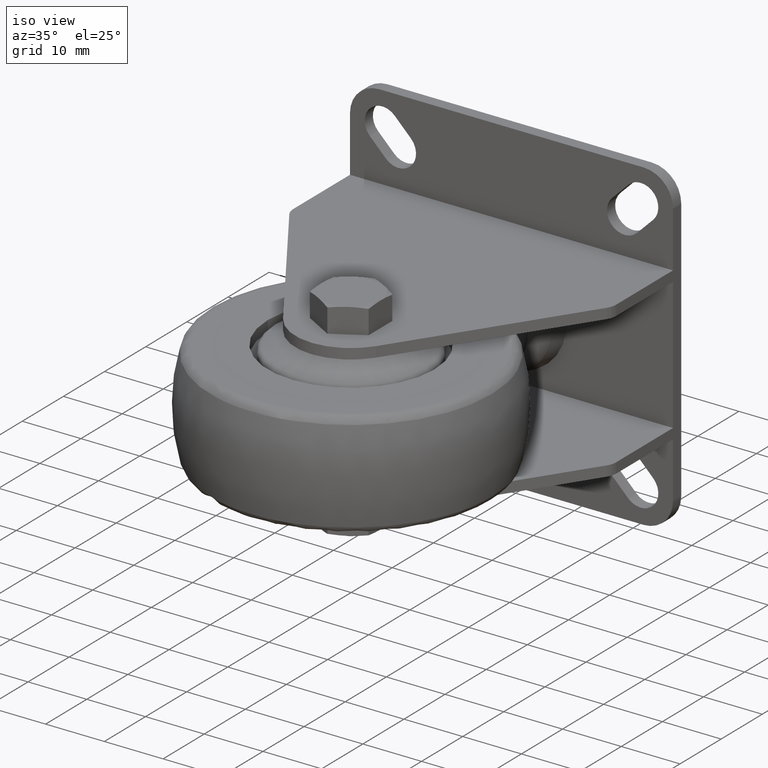
[diagram: clean part render]
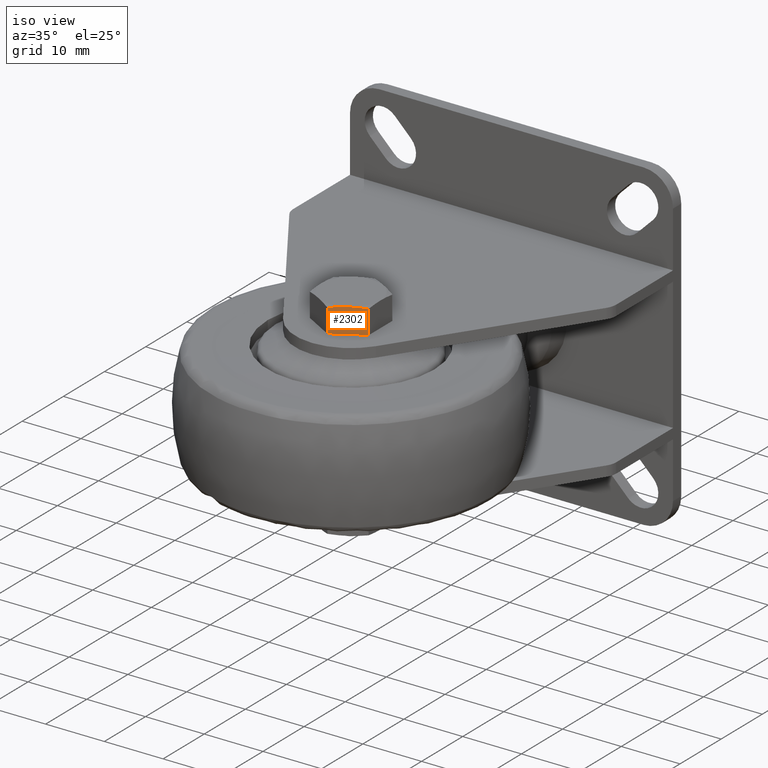
[diagram: same view with one face highlighted and labeled with its STEP entity id]
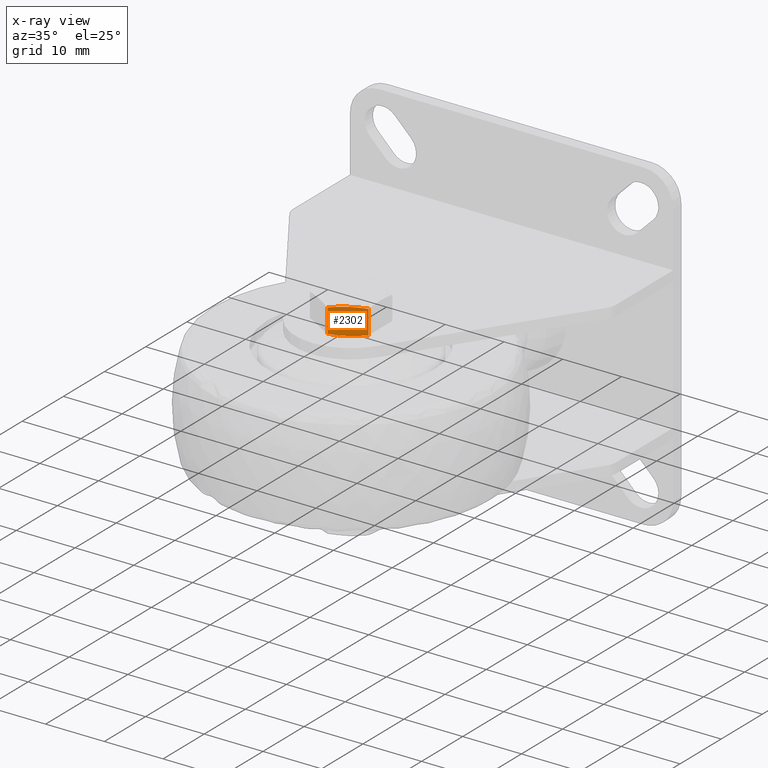
[diagram: x-ray of the same camera — body ghosted, the highlighted face saturated]
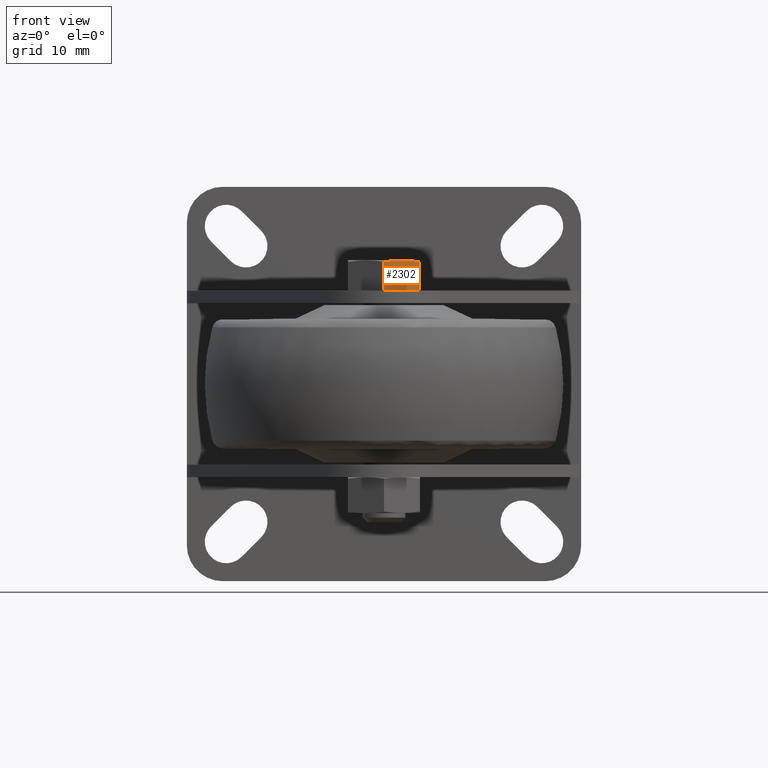
[diagram: same view with one face highlighted and labeled with its STEP entity id]
A machine part, iso view. The second image highlights one B-rep face of the part: STEP entity #2302.
The next image is the same camera in x-ray: the body ghosted, the highlighted face saturated — about 0% of this face is hidden behind the body in this view.
A second angle (front view) of the same face is appended — the face is thin or edge-on in the first view.
In plain terms, the highlighted planar face has unit normal (0.5, -0.866, -0).
Its self-contained STEP definition (entity closure, byte-faithful):
#77=(
BOUNDED_CURVE()
B_SPLINE_CURVE(2,(#4251,#4252,#4253),.UNSPECIFIED.,.F.,.F.)
B_SPLINE_CURVE_WITH_KNOTS((3,3),(1.72543024172676,2.56289083292665),
 .UNSPECIFIED.)
CURVE()
GEOMETRIC_REPRESENTATION_ITEM()
RATIONAL_B_SPLINE_CURVE((2.8334591186335,3.0526279441978,3.0526279441978))
REPRESENTATION_ITEM('')
);
#78=(
BOUNDED_CURVE()
B_SPLINE_CURVE(2,(#4254,#4255,#4256),.UNSPECIFIED.,.F.,.F.)
B_SPLINE_CURVE_WITH_KNOTS((3,3),(2.56289083292665,3.40035142412655),
 .UNSPECIFIED.)
CURVE()
GEOMETRIC_REPRESENTATION_ITEM()
RATIONAL_B_SPLINE_CURVE((3.0526279441978,3.0526279441978,2.8334591186335))
REPRESENTATION_ITEM('')
);
#79=(
BOUNDED_CURVE()
B_SPLINE_CURVE(2,(#4258,#4259,#4260),.UNSPECIFIED.,.F.,.F.)
B_SPLINE_CURVE_WITH_KNOTS((3,3),(1.72543024172442,2.56289083292307),
 .UNSPECIFIED.)
CURVE()
GEOMETRIC_REPRESENTATION_ITEM()
RATIONAL_B_SPLINE_CURVE((2.83345911863049,3.0526279441944,3.0526279441944))
REPRESENTATION_ITEM('')
);
#80=(
BOUNDED_CURVE()
B_SPLINE_CURVE(2,(#4262,#4263,#4264),.UNSPECIFIED.,.F.,.F.)
B_SPLINE_CURVE_WITH_KNOTS((3,3),(2.56289083292307,3.40035142412172),
 .UNSPECIFIED.)
CURVE()
GEOMETRIC_REPRESENTATION_ITEM()
RATIONAL_B_SPLINE_CURVE((3.0526279441944,3.0526279441944,2.83345911863049))
REPRESENTATION_ITEM('')
);
#266=PLANE('',#2769);
#394=FACE_OUTER_BOUND('',#566,.T.);
#566=EDGE_LOOP('',(#2057,#2058,#2059,#2060,#2061,#2062));
#711=LINE('',#4247,#835);
#712=LINE('',#4265,#836);
#835=VECTOR('',#3445,1000.);
#836=VECTOR('',#3448,1000.);
#1166=VERTEX_POINT('',#4228);
#1171=VERTEX_POINT('',#4243);
#1172=VERTEX_POINT('',#4249);
#1173=VERTEX_POINT('',#4250);
#1174=VERTEX_POINT('',#4257);
#1175=VERTEX_POINT('',#4261);
#1470=EDGE_CURVE('',#1166,#1171,#711,.T.);
#1471=EDGE_CURVE('',#1172,#1173,#77,.T.);
#1472=EDGE_CURVE('',#1173,#1166,#78,.T.);
#1473=EDGE_CURVE('',#1171,#1174,#79,.T.);
#1474=EDGE_CURVE('',#1174,#1175,#80,.T.);
#1475=EDGE_CURVE('',#1172,#1175,#712,.T.);
#2057=ORIENTED_EDGE('',*,*,#1471,.T.);
#2058=ORIENTED_EDGE('',*,*,#1472,.T.);
#2059=ORIENTED_EDGE('',*,*,#1470,.T.);
#2060=ORIENTED_EDGE('',*,*,#1473,.T.);
#2061=ORIENTED_EDGE('',*,*,#1474,.T.);
#2062=ORIENTED_EDGE('',*,*,#1475,.F.);
#2302=ADVANCED_FACE('',(#394),#266,.T.);
#2769=AXIS2_PLACEMENT_3D('',#4248,#3446,#3447);
#3445=DIRECTION('',(1.,0.,0.));
#3446=DIRECTION('center_axis',(0.,0.866025403784439,-0.5));
#3447=DIRECTION('ref_axis',(0.,0.5,0.866025403784439));
#3448=DIRECTION('',(1.,0.,0.));
#4228=CARTESIAN_POINT('',(-5.7927405783631,5.77350269189626,0.));
#4243=CARTESIAN_POINT('',(-1.7072594216369,5.77350269189626,0.));
#4247=CARTESIAN_POINT('',(-10.,5.77350269189626,0.));
#4248=CARTESIAN_POINT('Origin',(-10.,2.88675134594813,-5.));
#4249=CARTESIAN_POINT('',(-5.7927405783631,2.88675134594813,-5.));
#4250=CARTESIAN_POINT('',(-6.,4.33012701892219,-2.5));
#4251=CARTESIAN_POINT('Ctrl Pts',(-5.79274057836643,2.88675134594741,-5.00000000000125));
#4252=CARTESIAN_POINT('Ctrl Pts',(-6.,3.6602540378441,-3.66025403784489));
#4253=CARTESIAN_POINT('Ctrl Pts',(-6.,4.33012701892219,-2.50000000000001));
#4254=CARTESIAN_POINT('Ctrl Pts',(-6.,4.33012701892219,-2.50000000000001));
#4255=CARTESIAN_POINT('Ctrl Pts',(-6.,5.00000000000028,-1.33974596215512));
#4256=CARTESIAN_POINT('Ctrl Pts',(-5.79274057836643,5.77350269189697,1.23848370112627E-12));
#4257=CARTESIAN_POINT('',(-1.5,4.33012701892219,-2.5));
#4258=CARTESIAN_POINT('Ctrl Pts',(-1.70725942164253,5.77350269189638,1.99988003371146E-13));
#4259=CARTESIAN_POINT('Ctrl Pts',(-1.50000000000912,5.00000000000005,-1.33974596215553));
#4260=CARTESIAN_POINT('Ctrl Pts',(-1.50000000000912,4.33012701892219,-2.5));
#4261=CARTESIAN_POINT('',(-1.7072594216369,2.88675134594813,-5.));
#4262=CARTESIAN_POINT('Ctrl Pts',(-1.50000000000912,4.33012701892219,-2.5));
#4263=CARTESIAN_POINT('Ctrl Pts',(-1.50000000000912,3.66025403784434,-3.66025403784447));
#4264=CARTESIAN_POINT('Ctrl Pts',(-1.70725942164253,2.88675134594801,-5.00000000000021));
#4265=CARTESIAN_POINT('',(-10.,2.88675134594813,-5.));